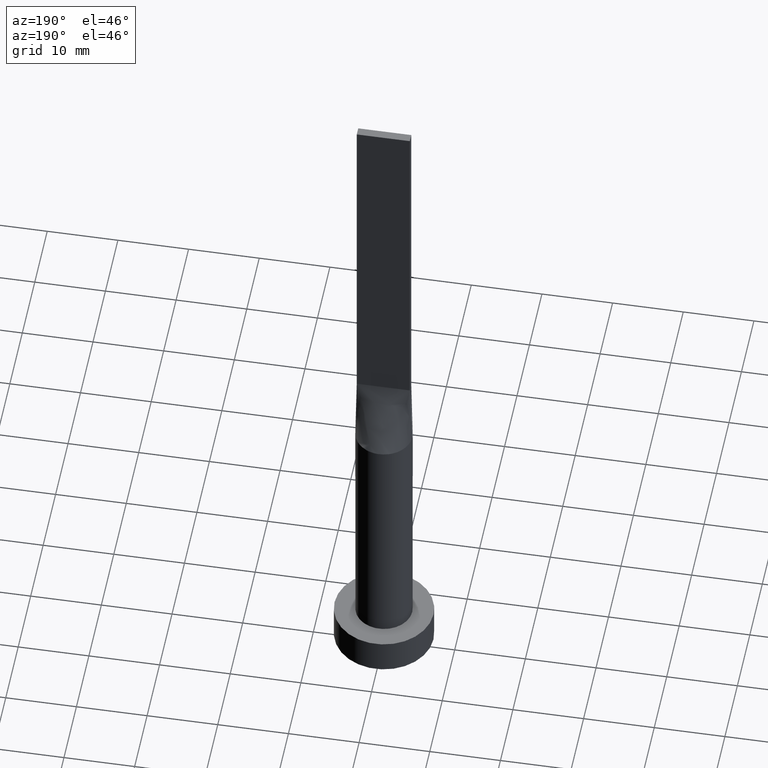
[diagram: clean part render]
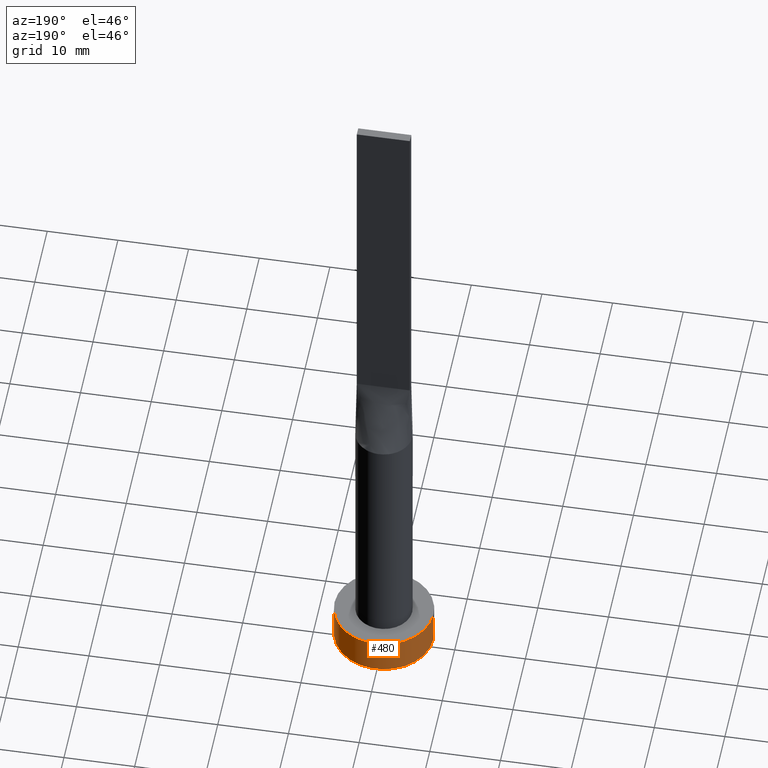
[diagram: same view with one face highlighted and labeled with its STEP entity id]
A machine part, auxiliary view. The second image highlights one B-rep face of the part: STEP entity #480.
In plain terms, the highlighted cylindrical surface (partial cylindrical patch) has radius 7 mm, axis along (-0, -0, -1).
Its self-contained STEP definition (entity closure, byte-faithful):
#15 = CIRCLE ( 'NONE', #135, 7.000000000000000000 ) ;
#19 = CARTESIAN_POINT ( 'NONE',  ( 0.000000000000000000, 0.000000000000000000, 5.000000000000000000 ) ) ;
#33 = CARTESIAN_POINT ( 'NONE',  ( 7.000000000000000000, 8.572527594031473190E-16, 5.000000000000000000 ) ) ;
#43 = DIRECTION ( 'NONE',  ( -1.000000000000000000, 0.000000000000000000, 0.000000000000000000 ) ) ;
#46 = EDGE_CURVE ( 'NONE', #368, #474, #242, .T. ) ;
#49 = EDGE_LOOP ( 'NONE', ( #339, #358, #501, #546 ) ) ;
#60 = CARTESIAN_POINT ( 'NONE',  ( 0.000000000000000000, 0.000000000000000000, 5.000000000000000000 ) ) ;
#101 = CARTESIAN_POINT ( 'NONE',  ( 7.000000000000000000, 8.572527594031473190E-16, 0.000000000000000000 ) ) ;
#123 = LINE ( 'NONE', #486, #398 ) ;
#135 = AXIS2_PLACEMENT_3D ( 'NONE', #19, #181, #509 ) ;
#147 = VECTOR ( 'NONE', #469, 1000.000000000000000 ) ;
#178 = VERTEX_POINT ( 'NONE', #499 ) ;
#181 = DIRECTION ( 'NONE',  ( 0.000000000000000000, 0.000000000000000000, 1.000000000000000000 ) ) ;
#202 = DIRECTION ( 'NONE',  ( -0.000000000000000000, -0.000000000000000000, -1.000000000000000000 ) ) ;
#203 = EDGE_CURVE ( 'NONE', #178, #577, #123, .T. ) ;
#229 = FACE_OUTER_BOUND ( 'NONE', #49, .T. ) ;
#242 = LINE ( 'NONE', #373, #147 ) ;
#254 = CARTESIAN_POINT ( 'NONE',  ( -7.000000000000000000, 0.000000000000000000, 0.000000000000000000 ) ) ;
#257 = CIRCLE ( 'NONE', #282, 7.000000000000000000 ) ;
#282 = AXIS2_PLACEMENT_3D ( 'NONE', #573, #435, #571 ) ;
#324 = CYLINDRICAL_SURFACE ( 'NONE', #466, 7.000000000000000000 ) ;
#339 = ORIENTED_EDGE ( 'NONE', *, *, #428, .F. ) ;
#358 = ORIENTED_EDGE ( 'NONE', *, *, #46, .T. ) ;
#368 = VERTEX_POINT ( 'NONE', #33 ) ;
#373 = CARTESIAN_POINT ( 'NONE',  ( 7.000000000000000000, 8.572527594031473190E-16, 5.000000000000000000 ) ) ;
#398 = VECTOR ( 'NONE', #548, 1000.000000000000000 ) ;
#428 = EDGE_CURVE ( 'NONE', #368, #178, #15, .T. ) ;
#435 = DIRECTION ( 'NONE',  ( 0.000000000000000000, 0.000000000000000000, 1.000000000000000000 ) ) ;
#466 = AXIS2_PLACEMENT_3D ( 'NONE', #60, #202, #43 ) ;
#469 = DIRECTION ( 'NONE',  ( -0.000000000000000000, -0.000000000000000000, -1.000000000000000000 ) ) ;
#474 = VERTEX_POINT ( 'NONE', #101 ) ;
#480 = ADVANCED_FACE ( 'NONE', ( #229 ), #324, .T. ) ;
#486 = CARTESIAN_POINT ( 'NONE',  ( -7.000000000000000000, 0.000000000000000000, 5.000000000000000000 ) ) ;
#499 = CARTESIAN_POINT ( 'NONE',  ( -7.000000000000000000, 0.000000000000000000, 5.000000000000000000 ) ) ;
#501 = ORIENTED_EDGE ( 'NONE', *, *, #520, .T. ) ;
#509 = DIRECTION ( 'NONE',  ( 1.000000000000000000, 0.000000000000000000, 0.000000000000000000 ) ) ;
#520 = EDGE_CURVE ( 'NONE', #474, #577, #257, .T. ) ;
#546 = ORIENTED_EDGE ( 'NONE', *, *, #203, .F. ) ;
#548 = DIRECTION ( 'NONE',  ( -0.000000000000000000, -0.000000000000000000, -1.000000000000000000 ) ) ;
#571 = DIRECTION ( 'NONE',  ( 1.000000000000000000, 0.000000000000000000, 0.000000000000000000 ) ) ;
#573 = CARTESIAN_POINT ( 'NONE',  ( 0.000000000000000000, 0.000000000000000000, 0.000000000000000000 ) ) ;
#577 = VERTEX_POINT ( 'NONE', #254 ) ;